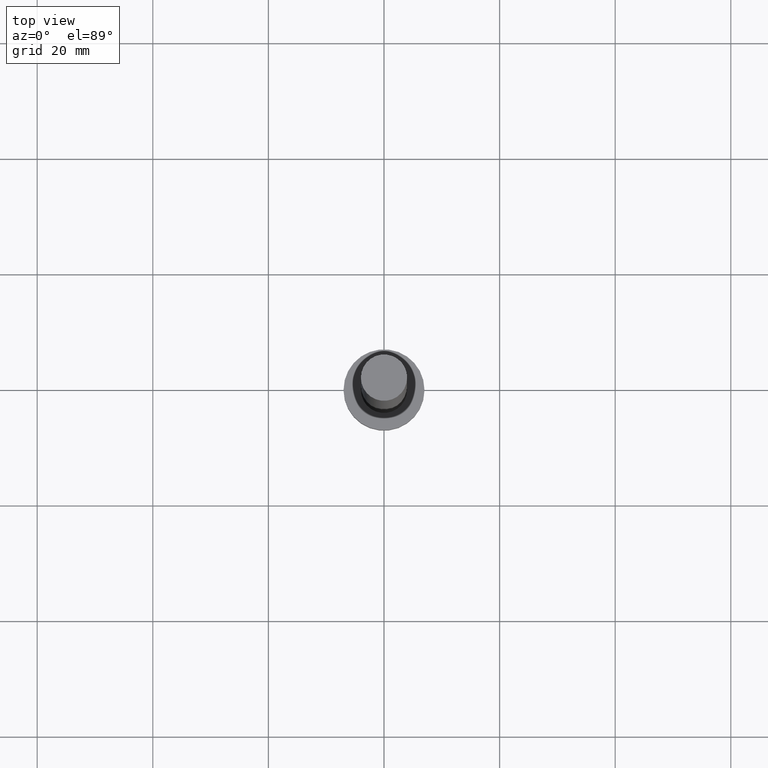
[diagram: clean part render]
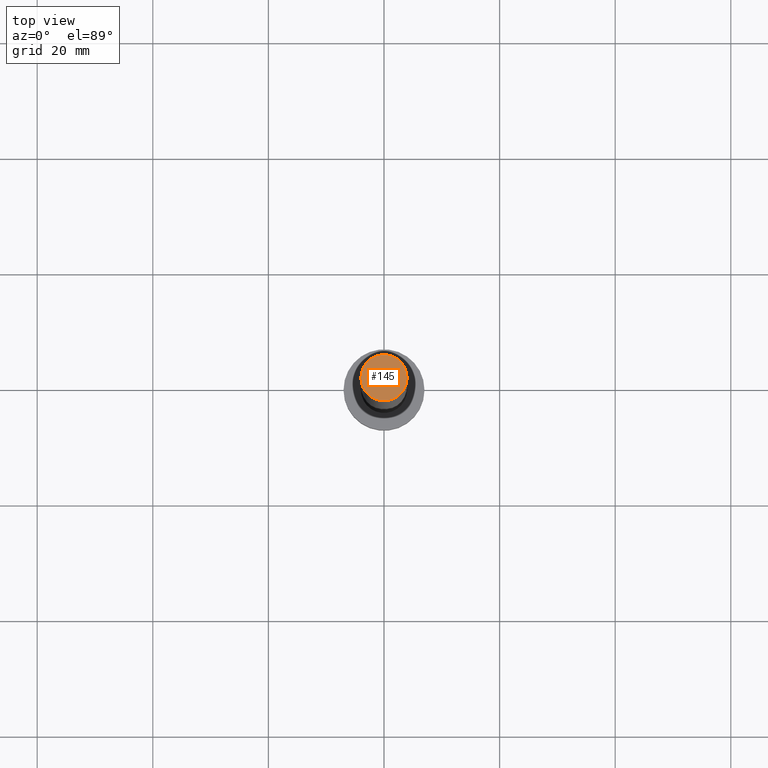
[diagram: same view with one face highlighted and labeled with its STEP entity id]
A machine part, top view. The second image highlights one B-rep face of the part: STEP entity #145.
In plain terms, the highlighted planar face has unit normal (0, 0, 1).
Its self-contained STEP definition (entity closure, byte-faithful):
#4 = CARTESIAN_POINT ( 'NONE',  ( 0.000000000000000000, 0.000000000000000000, 125.0000000000000000 ) ) ;
#27 = EDGE_LOOP ( 'NONE', ( #31, #44 ) ) ;
#31 = ORIENTED_EDGE ( 'NONE', *, *, #226, .T. ) ;
#34 = AXIS2_PLACEMENT_3D ( 'NONE', #4, #179, #148 ) ;
#39 = CIRCLE ( 'NONE', #34, 4.000000000000000000 ) ;
#44 = ORIENTED_EDGE ( 'NONE', *, *, #77, .T. ) ;
#52 = VERTEX_POINT ( 'NONE', #164 ) ;
#77 = EDGE_CURVE ( 'NONE', #155, #52, #81, .T. ) ;
#80 = PLANE ( 'NONE',  #103 ) ;
#81 = CIRCLE ( 'NONE', #230, 4.000000000000000000 ) ;
#85 = CARTESIAN_POINT ( 'NONE',  ( 4.000000000000000000, 4.898587196589412829E-16, 125.0000000000000000 ) ) ;
#103 = AXIS2_PLACEMENT_3D ( 'NONE', #238, #237, #147 ) ;
#126 = FACE_OUTER_BOUND ( 'NONE', #27, .T. ) ;
#144 = CARTESIAN_POINT ( 'NONE',  ( 0.000000000000000000, 0.000000000000000000, 125.0000000000000000 ) ) ;
#145 = ADVANCED_FACE ( 'NONE', ( #126 ), #80, .T. ) ;
#147 = DIRECTION ( 'NONE',  ( 1.000000000000000000, 0.000000000000000000, -0.000000000000000000 ) ) ;
#148 = DIRECTION ( 'NONE',  ( 1.000000000000000000, 0.000000000000000000, 0.000000000000000000 ) ) ;
#155 = VERTEX_POINT ( 'NONE', #85 ) ;
#164 = CARTESIAN_POINT ( 'NONE',  ( -4.000000000000000000, 0.000000000000000000, 125.0000000000000000 ) ) ;
#179 = DIRECTION ( 'NONE',  ( 0.000000000000000000, 0.000000000000000000, 1.000000000000000000 ) ) ;
#188 = DIRECTION ( 'NONE',  ( 1.000000000000000000, 0.000000000000000000, 0.000000000000000000 ) ) ;
#210 = DIRECTION ( 'NONE',  ( 0.000000000000000000, 0.000000000000000000, 1.000000000000000000 ) ) ;
#226 = EDGE_CURVE ( 'NONE', #52, #155, #39, .T. ) ;
#230 = AXIS2_PLACEMENT_3D ( 'NONE', #144, #210, #188 ) ;
#237 = DIRECTION ( 'NONE',  ( 0.000000000000000000, 0.000000000000000000, 1.000000000000000000 ) ) ;
#238 = CARTESIAN_POINT ( 'NONE',  ( 0.000000000000000000, 0.000000000000000000, 125.0000000000000000 ) ) ;